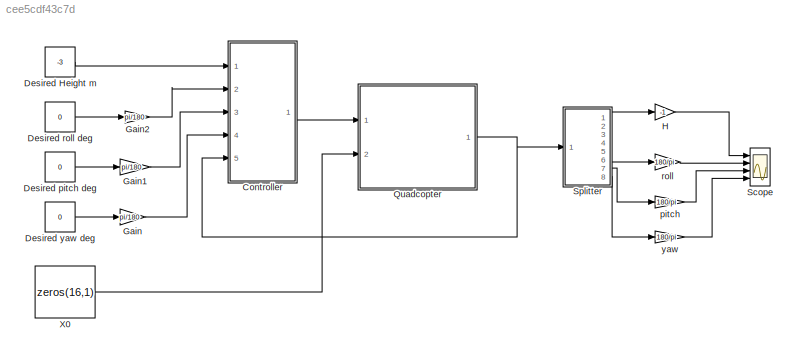
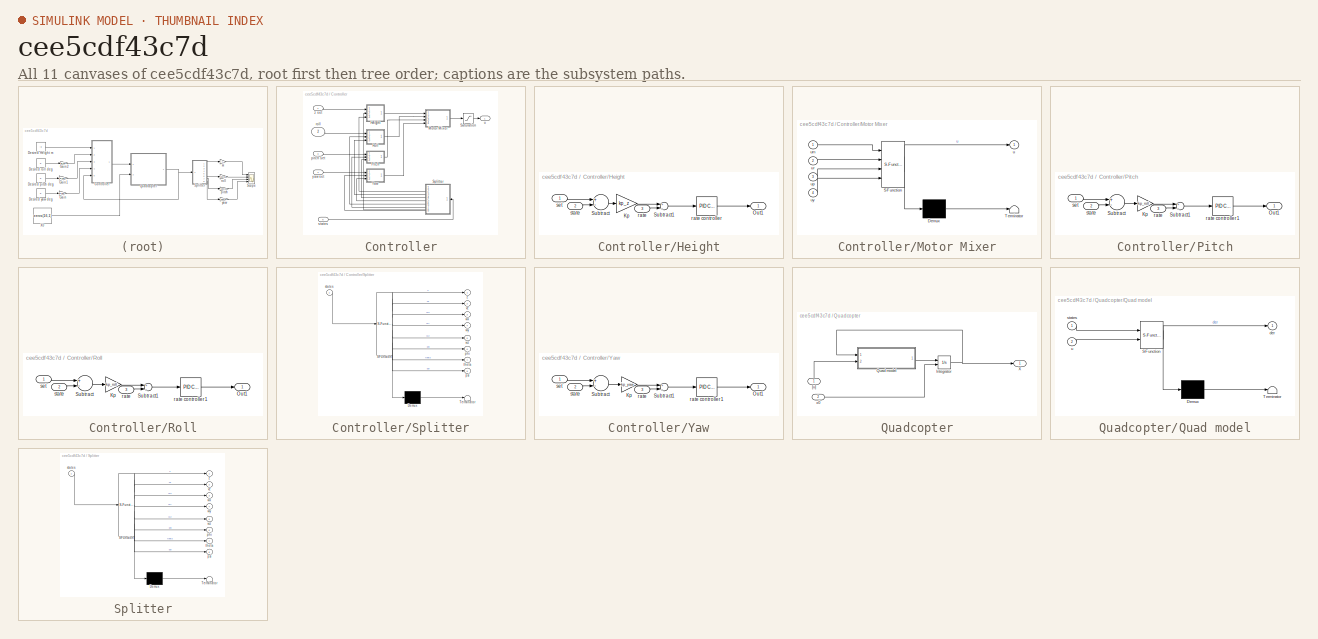
[diagram: thumbnail index - all 11 canvases of the model, root first then tree order]
MODEL slx_cee5cdf43c7d
KIND model
CONFIG AbsTol = auto
CONFIG FixedStep = auto
CONFIG InitFcn = parameters
CONFIG MaxStep = 0.02
CONFIG MinStep = auto
CONFIG RelTol = 1e-3
CONFIG SampleTimeConstraint = Unconstrained
CONFIG Solver = ode45
CONFIG SolverMode = SingleTasking
CONFIG SolverName = ode45
CONFIG StartTime = 0.0
CONFIG StopTime = 10
BLOCK [SubSystem] Controller
  Ports = [5, 1]
  RequestExecContextInheritance = off
  Variant = off
BLOCK [SubSystem] Controller/Height
  Ports = [3, 1]
  RequestExecContextInheritance = off
  Variant = off
BLOCK [Gain] Controller/Height/Kp
  Gain = kp_z
  OutDataTypeStr = Inherit: Inherit via internal rule
  ParamDataTypeStr = Inherit: Inherit via internal rule
  SaturateOnIntegerOverflow = off
BLOCK [Outport] Controller/Height/Out1
  IconDisplay = Port number
BLOCK [Sum] Controller/Height/Subtract
  InputSameDT = off
  Inputs = +-
  OutDataTypeStr = Inherit: Inherit via internal rule
  Ports = [2, 1]
  SaturateOnIntegerOverflow = off
BLOCK [Sum] Controller/Height/Subtract1
  InputSameDT = off
  Inputs = +-
  OutDataTypeStr = Inherit: Inherit via internal rule
  Ports = [2, 1]
  SaturateOnIntegerOverflow = off
BLOCK [Inport] Controller/Height/rate
  IconDisplay = Port number
  Port = 3
BLOCK [Reference] Controller/Height/rate controller  REF=simulink/Continuous/PID Controller
  AntiWindupMode = clamping
  Controller = PID
  ControllerParametersSource = internal
  D = kd_z_rate
  DGainOutDataTypeStr = Inherit: Inherit via internal rule
  DOutDataTypeStr = Inherit: Inherit via internal rule
  DOutMax = []
  DOutMin = []
  DParamDataTypeStr = Inherit: Inherit via internal rule
  DParamMax = []
  DParamMin = []
  DProdOutDataTypeStr = Inherit: Inherit via internal rule
  DifferentiatorICPrevScaledInput = 0
  DifferentiatorOutDataTypeStr = Inherit: Inherit via internal rule
  DifferentiatorOutMax = []
  DifferentiatorOutMin = []
  ExternalReset = none
  FilterContinuousStateAttributes = ''
  FilterMethod = Forward Euler
  FilterOutDataTypeStr = Inherit: Inherit via internal rule
  FilterOutMax = []
  FilterOutMin = []
  FilterRTWStateStorageClass = Auto
  FilterStateMustResolveToSignalObject = off
  Form = Parallel
  I = ki_z_rate
  IGainOutDataTypeStr = Inherit: Inherit via internal rule
  IOutDataTypeStr = Inherit: Inherit via internal rule
  IOutMax = []
  IOutMin = []
  IParamDataTypeStr = Inherit: Inherit via internal rule
  IParamMax = []
  IParamMin = []
  IProdOutDataTypeStr = Inherit: Inherit via internal rule
  IgnoreLimit = off
  InitialConditionForFilter = 0
  InitialConditionForIntegrator = 0
  InitialConditionSource = internal
  IntegratorContinuousStateAttributes = ''
  IntegratorMethod = Forward Euler
  IntegratorOutDataTypeStr = Inherit: Inherit via internal rule
  IntegratorOutMax = []
  IntegratorOutMin = []
  IntegratorRTWStateStorageClass = Auto
  IntegratorStateMustResolveToSignalObject = off
  Kb = 1
  KbOutDataTypeStr = Inherit: Inherit via internal rule
  KbOutMax = []
  KbOutMin = []
  KbParamDataTypeStr = Inherit: Inherit via internal rule
  KbParamMax = []
  KbParamMin = []
  Kt = 1
  KtOutDataTypeStr = Inherit: Inherit via internal rule
  KtOutMax = []
  KtOutMin = []
  KtParamDataTypeStr = Inherit: Inherit via internal rule
  KtParamMax = []
  KtParamMin = []
  LimitOutput = on
  LinearizeAsGain = on
  LockScale = off
  LowerSaturationLimit = -0.5
  N = 10
  NGainOutDataTypeStr = Inherit: Inherit via internal rule
  NOutDataTypeStr = Inherit: Inherit via internal rule
  NOutMax = []
  NOutMin = []
  NParamDataTypeStr = Inherit: Inherit via internal rule
  NParamMax = []
  NParamMin = []
  NProdOutDataTypeStr = Inherit: Inherit via internal rule
  P = kp_z_rate
  PGainOutDataTypeStr = Inherit: Inherit via internal rule
  POutDataTypeStr = Inherit: Inherit via internal rule
  POutMax = []
  POutMin = []
  PParamDataTypeStr = Inherit: Inherit via internal rule
  PParamMax = []
  PParamMin = []
  PProdOutDataTypeStr = Inherit: Inherit via internal rule
  Ports = [1, 1]
  RndMeth = Floor
  SampleTime = -1
  SaturateOnIntegerOverflow = off
  SaturationOutDataTypeStr = Inherit: Same as input
  SaturationOutMax = []
  SaturationOutMin = []
  SourceBlock = simulink/Continuous/PID Controller
  SourceType = PID 1dof
  SumAccumDataTypeStr = Inherit: Inherit via internal rule
  SumDAccumDataTypeStr = Inherit: Inherit via internal rule
  SumDOutDataTypeStr = Inherit: Inherit via internal rule
  SumDOutMax = []
  SumDOutMin = []
  SumI1AccumDataTypeStr = Inherit: Inherit via internal rule
  SumI1OutDataTypeStr = Inherit: Inherit via internal rule
  SumI1OutMax = []
  SumI1OutMin = []
  SumI2AccumDataTypeStr = Inherit: Inherit via internal rule
  SumI2OutDataTypeStr = Inherit: Inherit via internal rule
  SumI2OutMax = []
  SumI2OutMin = []
  SumI3AccumDataTypeStr = Inherit: Inherit via internal rule
  SumI3OutDataTypeStr = Inherit: Inherit via internal rule
  SumI3OutMax = []
  SumI3OutMin = []
  SumOutDataTypeStr = Inherit: Inherit via internal rule
  SumOutMax = []
  SumOutMin = []
  TimeDomain = Continuous-time
  TrackingMode = off
  UpperSaturationLimit = 0.5
  UseFilter = on
  ZeroCross = on
BLOCK [Inport] Controller/Height/set
  IconDisplay = Port number
BLOCK [Inport] Controller/Height/state
  IconDisplay = Port number
  Port = 2
BLOCK [SubSystem] Controller/Motor Mixer
  ErrorFcn = Stateflow.Translate.translate
  PermitHierarchicalResolution = ParametersOnly
  Ports = [4, 1]
  RequestExecContextInheritance = off
  SFBlockType = MATLAB Function
  TreatAsAtomicUnit = on
  Variant = off
BLOCK [Demux] Controller/Motor Mixer/ Demux 
  Outputs = 1
  Ports = [1, 1]
BLOCK [S-Function] Controller/Motor Mixer/ SFunction 
  EnableBusSupport = on
  FunctionName = sf_sfun
  PortCounts = [4 2]
  Ports = [4, 2]
  SFunctionDeploymentMode = off
  Tag = Stateflow S-Function quadcopter 1
BLOCK [Terminator] Controller/Motor Mixer/ Terminator 
BLOCK [Outport] Controller/Motor Mixer/u
  IconDisplay = Port number
BLOCK [Inport] Controller/Motor Mixer/um
  IconDisplay = Port number
BLOCK [Inport] Controller/Motor Mixer/up
  IconDisplay = Port number
  Port = 3
BLOCK [Inport] Controller/Motor Mixer/ur
  IconDisplay = Port number
  Port = 2
BLOCK [Inport] Controller/Motor Mixer/uy
  IconDisplay = Port number
  Port = 4
BLOCK [SubSystem] Controller/Pitch
  Ports = [3, 1]
  RequestExecContextInheritance = off
  Variant = off
BLOCK [Gain] Controller/Pitch/Kp
  Gain = kp_roll
  OutDataTypeStr = Inherit: Inherit via internal rule
  ParamDataTypeStr = Inherit: Inherit via internal rule
  SaturateOnIntegerOverflow = off
BLOCK [Outport] Controller/Pitch/Out1
  IconDisplay = Port number
BLOCK [Sum] Controller/Pitch/Subtract
  InputSameDT = off
  Inputs = +-
  OutDataTypeStr = Inherit: Inherit via internal rule
  Ports = [2, 1]
  SaturateOnIntegerOverflow = off
BLOCK [Sum] Controller/Pitch/Subtract1
  InputSameDT = off
  Inputs = +-
  OutDataTypeStr = Inherit: Inherit via internal rule
  Ports = [2, 1]
  SaturateOnIntegerOverflow = off
BLOCK [Inport] Controller/Pitch/rate
  IconDisplay = Port number
  Port = 3
BLOCK [Reference] Controller/Pitch/rate controller1  REF=simulink/Continuous/PID Controller
  AntiWindupMode = clamping
  Controller = PID
  ControllerParametersSource = internal
  D = kd_roll_rate
  DGainOutDataTypeStr = Inherit: Inherit via internal rule
  DOutDataTypeStr = Inherit: Inherit via internal rule
  DOutMax = []
  DOutMin = []
  DParamDataTypeStr = Inherit: Inherit via internal rule
  DParamMax = []
  DParamMin = []
  DProdOutDataTypeStr = Inherit: Inherit via internal rule
  DifferentiatorICPrevScaledInput = 0
  DifferentiatorOutDataTypeStr = Inherit: Inherit via internal rule
  DifferentiatorOutMax = []
  DifferentiatorOutMin = []
  ExternalReset = none
  FilterContinuousStateAttributes = ''
  FilterMethod = Forward Euler
  FilterOutDataTypeStr = Inherit: Inherit via internal rule
  FilterOutMax = []
  FilterOutMin = []
  FilterRTWStateStorageClass = Auto
  FilterStateMustResolveToSignalObject = off
  Form = Parallel
  I = ki_roll_rate
  IGainOutDataTypeStr = Inherit: Inherit via internal rule
  IOutDataTypeStr = Inherit: Inherit via internal rule
  IOutMax = []
  IOutMin = []
  IParamDataTypeStr = Inherit: Inherit via internal rule
  IParamMax = []
  IParamMin = []
  IProdOutDataTypeStr = Inherit: Inherit via internal rule
  IgnoreLimit = off
  InitialConditionForFilter = 0
  InitialConditionForIntegrator = 0
  InitialConditionSource = internal
  IntegratorContinuousStateAttributes = ''
  IntegratorMethod = Forward Euler
  IntegratorOutDataTypeStr = Inherit: Inherit via internal rule
  IntegratorOutMax = []
  IntegratorOutMin = []
  IntegratorRTWStateStorageClass = Auto
  IntegratorStateMustResolveToSignalObject = off
  Kb = 1
  KbOutDataTypeStr = Inherit: Inherit via internal rule
  KbOutMax = []
  KbOutMin = []
  KbParamDataTypeStr = Inherit: Inherit via internal rule
  KbParamMax = []
  KbParamMin = []
  Kt = 1
  KtOutDataTypeStr = Inherit: Inherit via internal rule
  KtOutMax = []
  KtOutMin = []
  KtParamDataTypeStr = Inherit: Inherit via internal rule
  KtParamMax = []
  KtParamMin = []
  LimitOutput = on
  LinearizeAsGain = on
  LockScale = off
  LowerSaturationLimit = -0.5
  N = 10
  NGainOutDataTypeStr = Inherit: Inherit via internal rule
  NOutDataTypeStr = Inherit: Inherit via internal rule
  NOutMax = []
  NOutMin = []
  NParamDataTypeStr = Inherit: Inherit via internal rule
  NParamMax = []
  NParamMin = []
  NProdOutDataTypeStr = Inherit: Inherit via internal rule
  P = kp_roll_rate
  PGainOutDataTypeStr = Inherit: Inherit via internal rule
  POutDataTypeStr = Inherit: Inherit via internal rule
  POutMax = []
  POutMin = []
  PParamDataTypeStr = Inherit: Inherit via internal rule
  PParamMax = []
  PParamMin = []
  PProdOutDataTypeStr = Inherit: Inherit via internal rule
  Ports = [1, 1]
  RndMeth = Floor
  SampleTime = -1
  SaturateOnIntegerOverflow = off
  SaturationOutDataTypeStr = Inherit: Same as input
  SaturationOutMax = []
  SaturationOutMin = []
  SourceBlock = simulink/Continuous/PID Controller
  SourceType = PID 1dof
  SumAccumDataTypeStr = Inherit: Inherit via internal rule
  SumDAccumDataTypeStr = Inherit: Inherit via internal rule
  SumDOutDataTypeStr = Inherit: Inherit via internal rule
  SumDOutMax = []
  SumDOutMin = []
  SumI1AccumDataTypeStr = Inherit: Inherit via internal rule
  SumI1OutDataTypeStr = Inherit: Inherit via internal rule
  SumI1OutMax = []
  SumI1OutMin = []
  SumI2AccumDataTypeStr = Inherit: Inherit via internal rule
  SumI2OutDataTypeStr = Inherit: Inherit via internal rule
  SumI2OutMax = []
  SumI2OutMin = []
  SumI3AccumDataTypeStr = Inherit: Inherit via internal rule
  SumI3OutDataTypeStr = Inherit: Inherit via internal rule
  SumI3OutMax = []
  SumI3OutMin = []
  SumOutDataTypeStr = Inherit: Inherit via internal rule
  SumOutMax = []
  SumOutMin = []
  TimeDomain = Continuous-time
  TrackingMode = off
  UpperSaturationLimit = 00.5
  UseFilter = on
  ZeroCross = on
BLOCK [Inport] Controller/Pitch/set
  IconDisplay = Port number
BLOCK [Inport] Controller/Pitch/state
  IconDisplay = Port number
  Port = 2
BLOCK [SubSystem] Controller/Roll
  Ports = [3, 1]
  RequestExecContextInheritance = off
  Variant = off
BLOCK [Gain] Controller/Roll/Kp
  Gain = kp_roll
  OutDataTypeStr = Inherit: Inherit via internal rule
  ParamDataTypeStr = Inherit: Inherit via internal rule
  SaturateOnIntegerOverflow = off
BLOCK [Outport] Controller/Roll/Out1
  IconDisplay = Port number
BLOCK [Sum] Controller/Roll/Subtract
  InputSameDT = off
  Inputs = +-
  OutDataTypeStr = Inherit: Inherit via internal rule
  Ports = [2, 1]
  SaturateOnIntegerOverflow = off
BLOCK [Sum] Controller/Roll/Subtract1
  InputSameDT = off
  Inputs = +-
  OutDataTypeStr = Inherit: Inherit via internal rule
  Ports = [2, 1]
  SaturateOnIntegerOverflow = off
BLOCK [Inport] Controller/Roll/rate
  IconDisplay = Port number
  Port = 3
BLOCK [Reference] Controller/Roll/rate controller1  REF=simulink/Continuous/PID Controller
  AntiWindupMode = clamping
  Controller = PID
  ControllerParametersSource = internal
  D = kd_roll_rate
  DGainOutDataTypeStr = Inherit: Inherit via internal rule
  DOutDataTypeStr = Inherit: Inherit via internal rule
  DOutMax = []
  DOutMin = []
  DParamDataTypeStr = Inherit: Inherit via internal rule
  DParamMax = []
  DParamMin = []
  DProdOutDataTypeStr = Inherit: Inherit via internal rule
  DifferentiatorICPrevScaledInput = 0
  DifferentiatorOutDataTypeStr = Inherit: Inherit via internal rule
  DifferentiatorOutMax = []
  DifferentiatorOutMin = []
  ExternalReset = none
  FilterContinuousStateAttributes = ''
  FilterMethod = Forward Euler
  FilterOutDataTypeStr = Inherit: Inherit via internal rule
  FilterOutMax = []
  FilterOutMin = []
  FilterRTWStateStorageClass = Auto
  FilterStateMustResolveToSignalObject = off
  Form = Parallel
  I = ki_roll_rate
  IGainOutDataTypeStr = Inherit: Inherit via internal rule
  IOutDataTypeStr = Inherit: Inherit via internal rule
  IOutMax = []
  IOutMin = []
  IParamDataTypeStr = Inherit: Inherit via internal rule
  IParamMax = []
  IParamMin = []
  IProdOutDataTypeStr = Inherit: Inherit via internal rule
  IgnoreLimit = off
  InitialConditionForFilter = 0
  InitialConditionForIntegrator = 0
  InitialConditionSource = internal
  IntegratorContinuousStateAttributes = ''
  IntegratorMethod = Forward Euler
  IntegratorOutDataTypeStr = Inherit: Inherit via internal rule
  IntegratorOutMax = []
  IntegratorOutMin = []
  IntegratorRTWStateStorageClass = Auto
  IntegratorStateMustResolveToSignalObject = off
  Kb = 1
  KbOutDataTypeStr = Inherit: Inherit via internal rule
  KbOutMax = []
  KbOutMin = []
  KbParamDataTypeStr = Inherit: Inherit via internal rule
  KbParamMax = []
  KbParamMin = []
  Kt = 1
  KtOutDataTypeStr = Inherit: Inherit via internal rule
  KtOutMax = []
  KtOutMin = []
  KtParamDataTypeStr = Inherit: Inherit via internal rule
  KtParamMax = []
  KtParamMin = []
  LimitOutput = on
  LinearizeAsGain = on
  LockScale = off
  LowerSaturationLimit = -0.5
  N = 10
  NGainOutDataTypeStr = Inherit: Inherit via internal rule
  NOutDataTypeStr = Inherit: Inherit via internal rule
  NOutMax = []
  NOutMin = []
  NParamDataTypeStr = Inherit: Inherit via internal rule
  NParamMax = []
  NParamMin = []
  NProdOutDataTypeStr = Inherit: Inherit via internal rule
  P = kp_roll_rate
  PGainOutDataTypeStr = Inherit: Inherit via internal rule
  POutDataTypeStr = Inherit: Inherit via internal rule
  POutMax = []
  POutMin = []
  PParamDataTypeStr = Inherit: Inherit via internal rule
  PParamMax = []
  PParamMin = []
  PProdOutDataTypeStr = Inherit: Inherit via internal rule
  Ports = [1, 1]
  RndMeth = Floor
  SampleTime = -1
  SaturateOnIntegerOverflow = off
  SaturationOutDataTypeStr = Inherit: Same as input
  SaturationOutMax = []
  SaturationOutMin = []
  SourceBlock = simulink/Continuous/PID Controller
  SourceType = PID 1dof
  SumAccumDataTypeStr = Inherit: Inherit via internal rule
  SumDAccumDataTypeStr = Inherit: Inherit via internal rule
  SumDOutDataTypeStr = Inherit: Inherit via internal rule
  SumDOutMax = []
  SumDOutMin = []
  SumI1AccumDataTypeStr = Inherit: Inherit via internal rule
  SumI1OutDataTypeStr = Inherit: Inherit via internal rule
  SumI1OutMax = []
  SumI1OutMin = []
  SumI2AccumDataTypeStr = Inherit: Inherit via internal rule
  SumI2OutDataTypeStr = Inherit: Inherit via internal rule
  SumI2OutMax = []
  SumI2OutMin = []
  SumI3AccumDataTypeStr = Inherit: Inherit via internal rule
  SumI3OutDataTypeStr = Inherit: Inherit via internal rule
  SumI3OutMax = []
  SumI3OutMin = []
  SumOutDataTypeStr = Inherit: Inherit via internal rule
  SumOutMax = []
  SumOutMin = []
  TimeDomain = Continuous-time
  TrackingMode = off
  UpperSaturationLimit = 0.5
  UseFilter = on
  ZeroCross = on
BLOCK [Inport] Controller/Roll/set
  IconDisplay = Port number
BLOCK [Inport] Controller/Roll/state
  IconDisplay = Port number
  Port = 2
BLOCK [Saturate] Controller/Saturation
  InputPortMap = u0
  LowerLimit = 0
  Ports = [1, 1]
  UpperLimit = 1
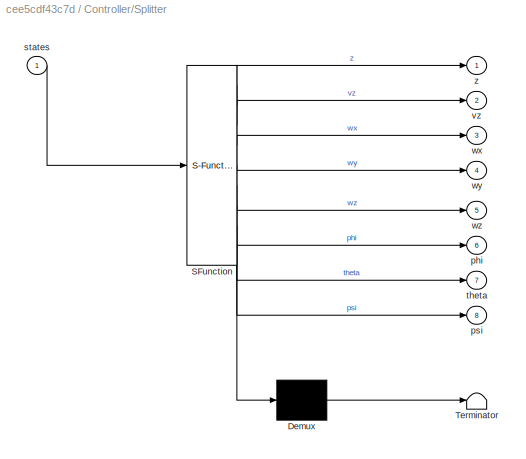
BLOCK [SubSystem] Controller/Splitter
  ErrorFcn = Stateflow.Translate.translate
  PermitHierarchicalResolution = ParametersOnly
  Ports = [1, 8]
  RequestExecContextInheritance = off
  SFBlockType = MATLAB Function
  TreatAsAtomicUnit = on
  Variant = off
BLOCK [Demux] Controller/Splitter/ Demux 
  Outputs = 1
  Ports = [1, 1]
BLOCK [S-Function] Controller/Splitter/ SFunction 
  EnableBusSupport = on
  FunctionName = sf_sfun
  PortCounts = [1 9]
  Ports = [1, 9]
  SFunctionDeploymentMode = off
  Tag = Stateflow S-Function quadcopter 3
BLOCK [Terminator] Controller/Splitter/ Terminator 
BLOCK [Outport] Controller/Splitter/phi
  IconDisplay = Port number
  Port = 6
BLOCK [Outport] Controller/Splitter/psi
  IconDisplay = Port number
  Port = 8
BLOCK [Inport] Controller/Splitter/states
  IconDisplay = Port number
BLOCK [Outport] Controller/Splitter/theta
  IconDisplay = Port number
  Port = 7
BLOCK [Outport] Controller/Splitter/vz
  IconDisplay = Port number
  Port = 2
BLOCK [Outport] Controller/Splitter/wx
  IconDisplay = Port number
  Port = 3
BLOCK [Outport] Controller/Splitter/wy
  IconDisplay = Port number
  Port = 4
BLOCK [Outport] Controller/Splitter/wz
  IconDisplay = Port number
  Port = 5
BLOCK [Outport] Controller/Splitter/z
  IconDisplay = Port number
BLOCK [SubSystem] Controller/Yaw
  Ports = [3, 1]
  RequestExecContextInheritance = off
  Variant = off
BLOCK [Gain] Controller/Yaw/Kp
  Gain = kp_yaw
  OutDataTypeStr = Inherit: Inherit via internal rule
  ParamDataTypeStr = Inherit: Inherit via internal rule
  SaturateOnIntegerOverflow = off
BLOCK [Outport] Controller/Yaw/Out1
  IconDisplay = Port number
BLOCK [Sum] Controller/Yaw/Subtract
  InputSameDT = off
  Inputs = +-
  OutDataTypeStr = Inherit: Inherit via internal rule
  Ports = [2, 1]
  SaturateOnIntegerOverflow = off
BLOCK [Sum] Controller/Yaw/Subtract1
  InputSameDT = off
  Inputs = +-
  OutDataTypeStr = Inherit: Inherit via internal rule
  Ports = [2, 1]
  SaturateOnIntegerOverflow = off
BLOCK [Inport] Controller/Yaw/rate
  IconDisplay = Port number
  Port = 3
BLOCK [Reference] Controller/Yaw/rate controller1  REF=simulink/Continuous/PID Controller
  AntiWindupMode = clamping
  Controller = PID
  ControllerParametersSource = internal
  D = kd_yaw_rate
  DGainOutDataTypeStr = Inherit: Inherit via internal rule
  DOutDataTypeStr = Inherit: Inherit via internal rule
  DOutMax = []
  DOutMin = []
  DParamDataTypeStr = Inherit: Inherit via internal rule
  DParamMax = []
  DParamMin = []
  DProdOutDataTypeStr = Inherit: Inherit via internal rule
  DifferentiatorICPrevScaledInput = 0
  DifferentiatorOutDataTypeStr = Inherit: Inherit via internal rule
  DifferentiatorOutMax = []
  DifferentiatorOutMin = []
  ExternalReset = none
  FilterContinuousStateAttributes = ''
  FilterMethod = Forward Euler
  FilterOutDataTypeStr = Inherit: Inherit via internal rule
  FilterOutMax = []
  FilterOutMin = []
  FilterRTWStateStorageClass = Auto
  FilterStateMustResolveToSignalObject = off
  Form = Parallel
  I = ki_yaw_rate
  IGainOutDataTypeStr = Inherit: Inherit via internal rule
  IOutDataTypeStr = Inherit: Inherit via internal rule
  IOutMax = []
  IOutMin = []
  IParamDataTypeStr = Inherit: Inherit via internal rule
  IParamMax = []
  IParamMin = []
  IProdOutDataTypeStr = Inherit: Inherit via internal rule
  IgnoreLimit = off
  InitialConditionForFilter = 0
  InitialConditionForIntegrator = 0
  InitialConditionSource = internal
  IntegratorContinuousStateAttributes = ''
  IntegratorMethod = Forward Euler
  IntegratorOutDataTypeStr = Inherit: Inherit via internal rule
  IntegratorOutMax = []
  IntegratorOutMin = []
  IntegratorRTWStateStorageClass = Auto
  IntegratorStateMustResolveToSignalObject = off
  Kb = 1
  KbOutDataTypeStr = Inherit: Inherit via internal rule
  KbOutMax = []
  KbOutMin = []
  KbParamDataTypeStr = Inherit: Inherit via internal rule
  KbParamMax = []
  KbParamMin = []
  Kt = 1
  KtOutDataTypeStr = Inherit: Inherit via internal rule
  KtOutMax = []
  KtOutMin = []
  KtParamDataTypeStr = Inherit: Inherit via internal rule
  KtParamMax = []
  KtParamMin = []
  LimitOutput = on
  LinearizeAsGain = on
  LockScale = off
  LowerSaturationLimit = -0.5
  N = 10
  NGainOutDataTypeStr = Inherit: Inherit via internal rule
  NOutDataTypeStr = Inherit: Inherit via internal rule
  NOutMax = []
  NOutMin = []
  NParamDataTypeStr = Inherit: Inherit via internal rule
  NParamMax = []
  NParamMin = []
  NProdOutDataTypeStr = Inherit: Inherit via internal rule
  P = kp_yaw_rate
  PGainOutDataTypeStr = Inherit: Inherit via internal rule
  POutDataTypeStr = Inherit: Inherit via internal rule
  POutMax = []
  POutMin = []
  PParamDataTypeStr = Inherit: Inherit via internal rule
  PParamMax = []
  PParamMin = []
  PProdOutDataTypeStr = Inherit: Inherit via internal rule
  Ports = [1, 1]
  RndMeth = Floor
  SampleTime = -1
  SaturateOnIntegerOverflow = off
  SaturationOutDataTypeStr = Inherit: Same as input
  SaturationOutMax = []
  SaturationOutMin = []
  SourceBlock = simulink/Continuous/PID Controller
  SourceType = PID 1dof
  SumAccumDataTypeStr = Inherit: Inherit via internal rule
  SumDAccumDataTypeStr = Inherit: Inherit via internal rule
  SumDOutDataTypeStr = Inherit: Inherit via internal rule
  SumDOutMax = []
  SumDOutMin = []
  SumI1AccumDataTypeStr = Inherit: Inherit via internal rule
  SumI1OutDataTypeStr = Inherit: Inherit via internal rule
  SumI1OutMax = []
  SumI1OutMin = []
  SumI2AccumDataTypeStr = Inherit: Inherit via internal rule
  SumI2OutDataTypeStr = Inherit: Inherit via internal rule
  SumI2OutMax = []
  SumI2OutMin = []
  SumI3AccumDataTypeStr = Inherit: Inherit via internal rule
  SumI3OutDataTypeStr = Inherit: Inherit via internal rule
  SumI3OutMax = []
  SumI3OutMin = []
  SumOutDataTypeStr = Inherit: Inherit via internal rule
  SumOutMax = []
  SumOutMin = []
  TimeDomain = Continuous-time
  TrackingMode = off
  UpperSaturationLimit = 0.5
  UseFilter = on
  ZeroCross = on
BLOCK [Inport] Controller/Yaw/set
  IconDisplay = Port number
BLOCK [Inport] Controller/Yaw/state
  IconDisplay = Port number
  Port = 2
BLOCK [Inport] Controller/pitch set
  IconDisplay = Port number
  Port = 3
BLOCK [Inport] Controller/roll
  IconDisplay = Port number
  Port = 2
BLOCK [Inport] Controller/states
  IconDisplay = Port number
  Port = 5
BLOCK [Outport] Controller/u
  IconDisplay = Port number
BLOCK [Inport] Controller/yaw set
  IconDisplay = Port number
  Port = 4
BLOCK [Inport] Controller/z set
  IconDisplay = Port number
BLOCK [Constant] Desired Height m
  Value = -3
BLOCK [Constant] Desired pitch deg
  Value = 0
BLOCK [Constant] Desired roll deg
  Value = 0
BLOCK [Constant] Desired yaw deg
  Value = 0
BLOCK [Gain] Gain
  Gain = pi/180
  OutDataTypeStr = Inherit: Inherit via internal rule
  ParamDataTypeStr = Inherit: Inherit via internal rule
  SaturateOnIntegerOverflow = off
BLOCK [Gain] Gain1
  Gain = pi/180
  OutDataTypeStr = Inherit: Inherit via internal rule
  ParamDataTypeStr = Inherit: Inherit via internal rule
  SaturateOnIntegerOverflow = off
BLOCK [Gain] Gain2
  Gain = pi/180
  OutDataTypeStr = Inherit: Inherit via internal rule
  ParamDataTypeStr = Inherit: Inherit via internal rule
  SaturateOnIntegerOverflow = off
BLOCK [Gain] H
  Gain = -1
  OutDataTypeStr = Inherit: Inherit via internal rule
  ParamDataTypeStr = Inherit: Inherit via internal rule
  SaturateOnIntegerOverflow = off
BLOCK [SubSystem] Quadcopter
  Ports = [2, 1]
  RequestExecContextInheritance = off
  Variant = off
BLOCK [Integrator] Quadcopter/Integrator
  InitialConditionSource = external
  LimitOutput = on
  LowerSaturationLimit = -[inf,inf,inf,inf,inf,inf,inf,inf,inf,inf,inf,inf,0,0,0,0]'
  Ports = [2, 1]
  UpperSaturationLimit = [inf,inf,inf,inf,inf,inf,inf,inf,inf,inf,inf,inf,inf,inf,inf,inf]'
BLOCK [SubSystem] Quadcopter/Quad model
  ErrorFcn = Stateflow.Translate.translate
  PermitHierarchicalResolution = ParametersOnly
  Ports = [2, 1]
  RequestExecContextInheritance = off
  SFBlockType = MATLAB Function
  TreatAsAtomicUnit = on
  Variant = off
BLOCK [Demux] Quadcopter/Quad model/ Demux 
  Outputs = 1
  Ports = [1, 1]
BLOCK [S-Function] Quadcopter/Quad model/ SFunction 
  EnableBusSupport = on
  FunctionName = sf_sfun
  PortCounts = [2 2]
  Ports = [2, 2]
  SFunctionDeploymentMode = off
  Tag = Stateflow S-Function quadcopter 2
BLOCK [Terminator] Quadcopter/Quad model/ Terminator 
BLOCK [Outport] Quadcopter/Quad model/der
  IconDisplay = Port number
BLOCK [Inport] Quadcopter/Quad model/states
  IconDisplay = Port number
BLOCK [Inport] Quadcopter/Quad model/u
  IconDisplay = Port number
  Port = 2
BLOCK [Outport] Quadcopter/X
  IconDisplay = Port number
BLOCK [Inport] Quadcopter/[u]
  IconDisplay = Port number
BLOCK [Inport] Quadcopter/x0
  IconDisplay = Port number
  Port = 2
BLOCK [Scope] Scope
  DataFormat = StructureWithTime
  Decimation = 1
  Grid = on
  LimitDataPoints = off
  MaxDataPoints = 5000
  NumInputPorts = 4
  Ports = [4]
  SampleInput = off
  SampleTime = -1
  SaveName = ScopeData
  SaveToWorkspace = off
  ShowLegends = on
  TickLabels = OneTimeTick
  TimeRange = auto
  YMax = 61.3125~5~5~5
  YMin = -551.8125~-5~-5~-5
  ZoomMode = on
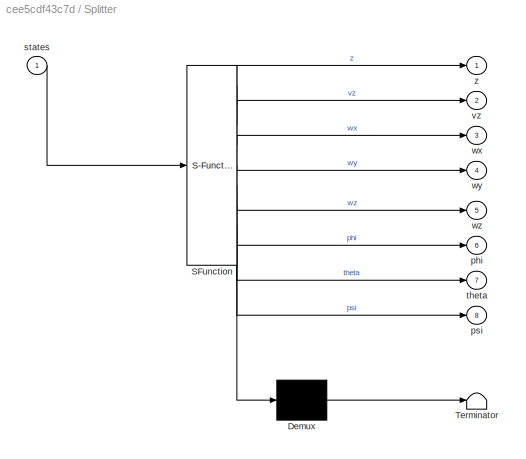
BLOCK [SubSystem] Splitter
  ErrorFcn = Stateflow.Translate.translate
  PermitHierarchicalResolution = ParametersOnly
  Ports = [1, 8]
  RequestExecContextInheritance = off
  SFBlockType = MATLAB Function
  TreatAsAtomicUnit = on
  Variant = off
BLOCK [Demux] Splitter/ Demux 
  Outputs = 1
  Ports = [1, 1]
BLOCK [S-Function] Splitter/ SFunction 
  EnableBusSupport = on
  FunctionName = sf_sfun
  PortCounts = [1 9]
  Ports = [1, 9]
  SFunctionDeploymentMode = off
  Tag = Stateflow S-Function quadcopter 4
BLOCK [Terminator] Splitter/ Terminator 
BLOCK [Outport] Splitter/phi
  IconDisplay = Port number
  Port = 6
BLOCK [Outport] Splitter/psi
  IconDisplay = Port number
  Port = 8
BLOCK [Inport] Splitter/states
  IconDisplay = Port number
BLOCK [Outport] Splitter/theta
  IconDisplay = Port number
  Port = 7
BLOCK [Outport] Splitter/vz
  IconDisplay = Port number
  Port = 2
BLOCK [Outport] Splitter/wx
  IconDisplay = Port number
  Port = 3
BLOCK [Outport] Splitter/wy
  IconDisplay = Port number
  Port = 4
BLOCK [Outport] Splitter/wz
  IconDisplay = Port number
  Port = 5
BLOCK [Outport] Splitter/z
  IconDisplay = Port number
BLOCK [Constant] X0
  Value = zeros(16,1)
BLOCK [Gain] pitch
  Gain = 180/pi
  OutDataTypeStr = Inherit: Inherit via internal rule
  ParamDataTypeStr = Inherit: Inherit via internal rule
  SaturateOnIntegerOverflow = off
BLOCK [Gain] roll
  Gain = 180/pi
  OutDataTypeStr = Inherit: Inherit via internal rule
  ParamDataTypeStr = Inherit: Inherit via internal rule
  SaturateOnIntegerOverflow = off
BLOCK [Gain] yaw
  Gain = 180/pi
  OutDataTypeStr = Inherit: Inherit via internal rule
  ParamDataTypeStr = Inherit: Inherit via internal rule
  SaturateOnIntegerOverflow = off
LINE Controller/Height/Kp:1 -> Controller/Height/Subtract1:1
LINE Controller/Height/Subtract1:1 -> Controller/Height/rate controller:1
LINE Controller/Height/Subtract:1 -> Controller/Height/Kp:1
LINE Controller/Height/rate controller:1 -> Controller/Height/Out1:1
LINE Controller/Height/rate:1 -> Controller/Height/Subtract1:2
LINE Controller/Height/set:1 -> Controller/Height/Subtract:1
LINE Controller/Height/state:1 -> Controller/Height/Subtract:2
LINE Controller/Height:1 -> Controller/Motor Mixer:1
LINE Controller/Motor Mixer:1 -> Controller/Saturation:1
LINE Controller/Pitch/Kp:1 -> Controller/Pitch/Subtract1:1
LINE Controller/Pitch/Subtract1:1 -> Controller/Pitch/rate controller1:1
LINE Controller/Pitch/Subtract:1 -> Controller/Pitch/Kp:1
LINE Controller/Pitch/rate controller1:1 -> Controller/Pitch/Out1:1
LINE Controller/Pitch/rate:1 -> Controller/Pitch/Subtract1:2
LINE Controller/Pitch/set:1 -> Controller/Pitch/Subtract:1
LINE Controller/Pitch/state:1 -> Controller/Pitch/Subtract:2
LINE Controller/Pitch:1 -> Controller/Motor Mixer:3
LINE Controller/Roll/Kp:1 -> Controller/Roll/Subtract1:1
LINE Controller/Roll/Subtract1:1 -> Controller/Roll/rate controller1:1
LINE Controller/Roll/Subtract:1 -> Controller/Roll/Kp:1
LINE Controller/Roll/rate controller1:1 -> Controller/Roll/Out1:1
LINE Controller/Roll/rate:1 -> Controller/Roll/Subtract1:2
LINE Controller/Roll/set:1 -> Controller/Roll/Subtract:1
LINE Controller/Roll/state:1 -> Controller/Roll/Subtract:2
LINE Controller/Roll:1 -> Controller/Motor Mixer:2
LINE Controller/Saturation:1 -> Controller/u:1
LINE Controller/Splitter:1 -> Controller/Height:2
LINE Controller/Splitter:2 -> Controller/Height:3
LINE Controller/Splitter:3 -> Controller/Roll:3
LINE Controller/Splitter:4 -> Controller/Pitch:3
LINE Controller/Splitter:5 -> Controller/Yaw:3
LINE Controller/Splitter:6 -> Controller/Roll:2
LINE Controller/Splitter:7 -> Controller/Pitch:2
LINE Controller/Splitter:8 -> Controller/Yaw:2
LINE Controller/Yaw/Kp:1 -> Controller/Yaw/Subtract1:1
LINE Controller/Yaw/Subtract1:1 -> Controller/Yaw/rate controller1:1
LINE Controller/Yaw/Subtract:1 -> Controller/Yaw/Kp:1
LINE Controller/Yaw/rate controller1:1 -> Controller/Yaw/Out1:1
LINE Controller/Yaw/rate:1 -> Controller/Yaw/Subtract1:2
LINE Controller/Yaw/set:1 -> Controller/Yaw/Subtract:1
LINE Controller/Yaw/state:1 -> Controller/Yaw/Subtract:2
LINE Controller/Yaw:1 -> Controller/Motor Mixer:4
LINE Controller/pitch set:1 -> Controller/Pitch:1
LINE Controller/roll:1 -> Controller/Roll:1
LINE Controller/states:1 -> Controller/Splitter:1
LINE Controller/yaw set:1 -> Controller/Yaw:1
LINE Controller/z set:1 -> Controller/Height:1
LINE Controller:1 -> Quadcopter:1
LINE Desired Height m:1 -> Controller:1
LINE Desired pitch deg:1 -> Gain1:1
LINE Desired roll deg:1 -> Gain2:1
LINE Desired yaw deg:1 -> Gain:1
LINE Gain1:1 -> Controller:3
LINE Gain2:1 -> Controller:2
LINE Gain:1 -> Controller:4
LINE H:1 -> Scope:1
NET Quadcopter/Integrator:1 -> Quadcopter/Quad model:1, Quadcopter/X:1
LINE Quadcopter/Quad model:1 -> Quadcopter/Integrator:1
LINE Quadcopter/[u]:1 -> Quadcopter/Quad model:2
LINE Quadcopter/x0:1 -> Quadcopter/Integrator:2
NET Quadcopter:1 -> Controller:5, Splitter:1
LINE Splitter:1 -> H:1
LINE Splitter:6 -> roll:1
LINE Splitter:7 -> pitch:1
LINE Splitter:8 -> yaw:1
LINE X0:1 -> Quadcopter:2
LINE pitch:1 -> Scope:3
LINE roll:1 -> Scope:2
LINE yaw:1 -> Scope:4
note: NET lines group one-source signal fan-out (src -> all destinations, sorted); 1:1 wires keep LINE
CHART Controller/Motor Mixer states=1 transitions=1
  STATE_LABEL 'eML_blk_kernel()'
  STATE_LABEL 'SCRIPT:\nfunction u = fcn(um, ur, up, uy)\n u = zeros(4,1);\n um = 0.4+um;\n  u(1) = um + up -ur + uy;\n  u(2) = um - up +ur + uy;\n  u(3) = um + up +ur - uy;\n  u(4) = um - up -ur - uy;\n  u = -u;'
CHART Quadcopter/Quad model states=1 transitions=1
  STATE_LABEL 'eML_blk_kernel()'
  STATE_LABEL 'SCRIPT:\nfunction der   = Quadcopter_nonLinear( states , u )\n%returns the derivative of the current states based on Quadcopters\n%mathematical model. der stands for derivative\n%SI units unless specified for all the states and params\nx = states(1);\ny = states(2);\nz = states(3);\nvx = states(4);\nvy = states(5);\nvz = states(6);\nwx =states(7);\nwy = states(8);\nwz = states(9);\npsi = states(10); \ntheta = st...<+1844ch>'
CHART Controller/Splitter states=1 transitions=1
  STATE_LABEL 'eML_blk_kernel()'
  STATE_LABEL 'SCRIPT:\nfunction [z,vz,wx,wy,wz,phi,theta,psi] = fcn(states)\nx = states(1);\ny = states(2);\nz = states(3);\nvx = states(4);\nvy = states(5);\nvz = states(6);\nwx =states(7);\nwy = states(8);\nwz = states(9);\npsi = states(10); \ntheta = states(11);\nphi = states(12);\nw = states(13:16);\n'
CHART Splitter states=1 transitions=1
  STATE_LABEL 'eML_blk_kernel()'
  STATE_LABEL 'SCRIPT:\nfunction [z,vz,wx,wy,wz,phi,theta,psi] = fcn(states)\nx = states(1);\ny = states(2);\nz = states(3);\nvx = states(4);\nvy = states(5);\nvz = states(6);\nwx =states(7);\nwy = states(8);\nwz = states(9);\npsi = states(10); \ntheta = states(11);\nphi = states(12);\nw = states(13:16);\n'
